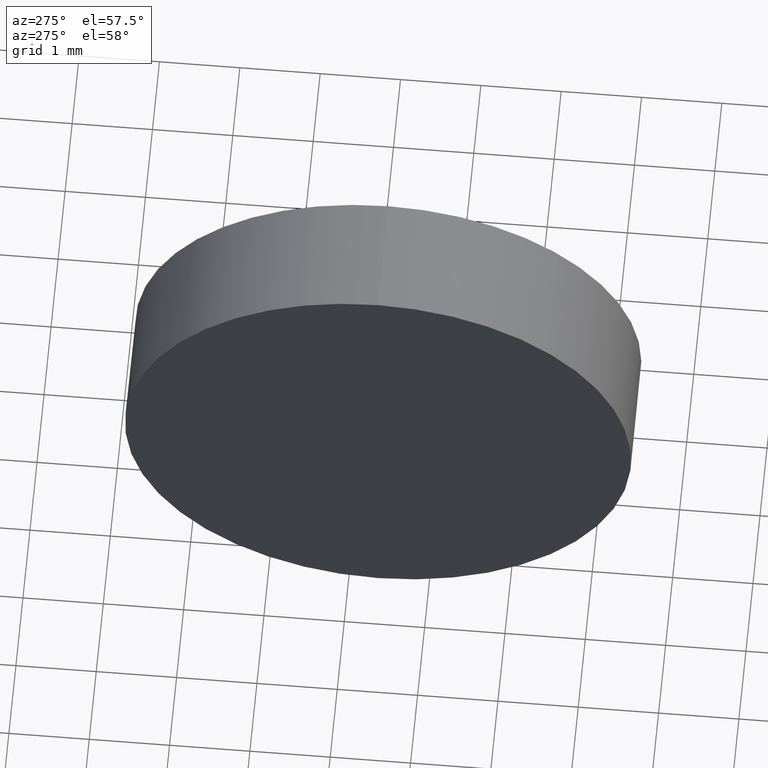
[diagram: clean part render]
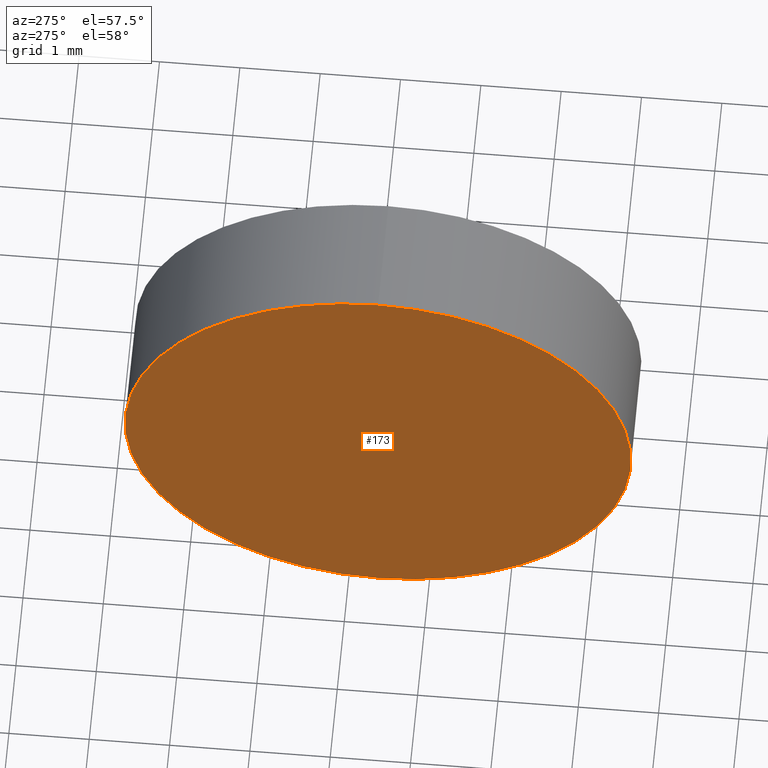
[diagram: same view with one face highlighted and labeled with its STEP entity id]
A machine part, auxiliary view. The second image highlights one B-rep face of the part: STEP entity #173.
In plain terms, the highlighted planar face has unit normal (1, 0, 0).
Its self-contained STEP definition (entity closure, byte-faithful):
#2 = DIRECTION ( 'NONE',  ( 0.0000000000000000000, 0.0000000000000000000, 1.000000000000000000 ) ) ;
#8 = EDGE_CURVE ( 'NONE', #47, #143, #75, .T. ) ;
#15 = CIRCLE ( 'NONE', #32, 3.149999999999986100 ) ;
#18 = CARTESIAN_POINT ( 'NONE',  ( 623.5874028010093800, 93.63142839999422100, 0.0000000000000000000 ) ) ;
#32 = AXIS2_PLACEMENT_3D ( 'NONE', #140, #44, #172 ) ;
#37 = AXIS2_PLACEMENT_3D ( 'NONE', #91, #66, #110 ) ;
#44 = DIRECTION ( 'NONE',  ( -1.000000000000000000, -0.0000000000000000000, -0.0000000000000000000 ) ) ;
#47 = VERTEX_POINT ( 'NONE', #154 ) ;
#50 = CARTESIAN_POINT ( 'NONE',  ( 623.5874028010093800, 93.63142839999422100, 3.149999999999986100 ) ) ;
#54 = FACE_OUTER_BOUND ( 'NONE', #103, .T. ) ;
#56 = DIRECTION ( 'NONE',  ( -1.000000000000000000, -0.0000000000000000000, -0.0000000000000000000 ) ) ;
#66 = DIRECTION ( 'NONE',  ( 1.000000000000000000, 0.0000000000000000000, 0.0000000000000000000 ) ) ;
#75 = CIRCLE ( 'NONE', #99, 3.149999999999986100 ) ;
#81 = EDGE_CURVE ( 'NONE', #143, #47, #15, .T. ) ;
#90 = ORIENTED_EDGE ( 'NONE', *, *, #8, .T. ) ;
#91 = CARTESIAN_POINT ( 'NONE',  ( 623.5874028010093800, 93.63142839999422100, 0.0000000000000000000 ) ) ;
#99 = AXIS2_PLACEMENT_3D ( 'NONE', #18, #56, #2 ) ;
#103 = EDGE_LOOP ( 'NONE', ( #183, #90 ) ) ;
#110 = DIRECTION ( 'NONE',  ( 0.0000000000000000000, 0.0000000000000000000, -1.000000000000000000 ) ) ;
#130 = PLANE ( 'NONE',  #37 ) ;
#140 = CARTESIAN_POINT ( 'NONE',  ( 623.5874028010093800, 93.63142839999422100, 0.0000000000000000000 ) ) ;
#143 = VERTEX_POINT ( 'NONE', #50 ) ;
#154 = CARTESIAN_POINT ( 'NONE',  ( 623.5874028010093800, 93.63142839999422100, -3.149999999999986100 ) ) ;
#172 = DIRECTION ( 'NONE',  ( 0.0000000000000000000, 0.0000000000000000000, 1.000000000000000000 ) ) ;
#173 = ADVANCED_FACE ( 'NONE', ( #54 ), #130, .F. ) ;
#183 = ORIENTED_EDGE ( 'NONE', *, *, #81, .T. ) ;